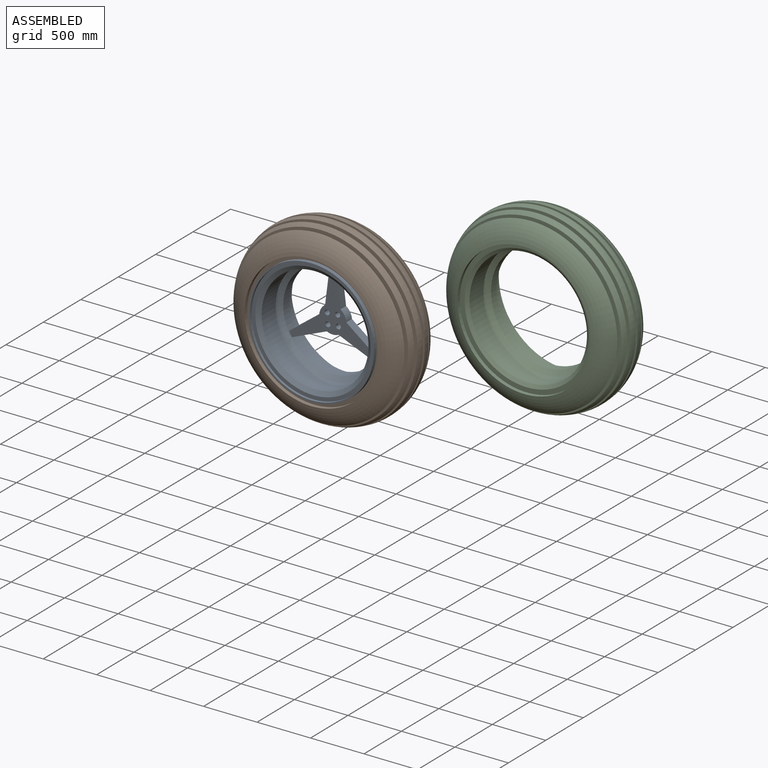
[diagram: assembled view]
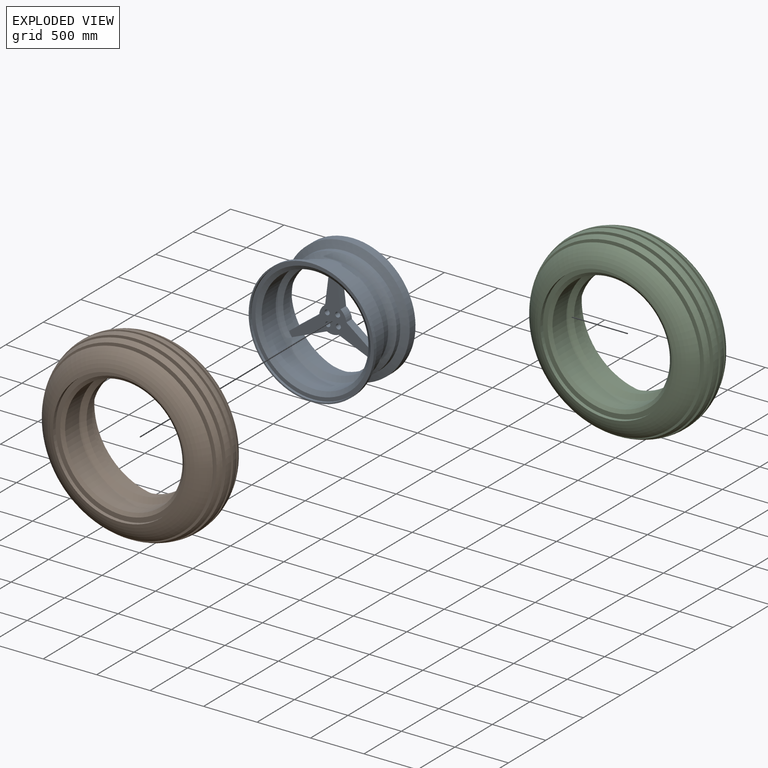
[diagram: exploded view]
GUIDED TOUR — MATED ASSEMBLY (Onshape document 36b873a3025f61fb6bbe2c13, AutoMate assembly 36b873a3025f61fb6bbe2c13_87b5c8f875b03c5a4a25c1a3_1e815d5390a2ac154a26e2ed_default)

This assembly has 3 components, labeled P0..P2 below (a component is one placed occurrence of a part; the same part can appear more than once), held together by 1 mate. A mate is a constraint between two components; its type names the relative motion it leaves free:
  REVOLUTE — leaves rotation about the listed axis free (a hinge).
Axis/direction vectors are unit vectors and 'through' points are millimeter coordinates, both in the assembly's world frame.

MATES
  1. REVOLUTE "Revolute 1": P1 <-> P0, axis (0.000, -1.000, 0.000) through (-582.43, -552.18, 38.10) mm

ASSEMBLY ORDER
  1. P0 — the base component [order heuristic]
  2. P1 — core [order heuristic]
  3. P2 [order verified]
Order-tag legend:
  [order verified] — this step's position reverses a verified removal order: the component was checked to insert without passing through the ones already placed.
  [order heuristic] — the first 2 components form the assembly's core: parts whose collision-free extraction could not be verified, listed in mate-graph order.

Of the 3 components, 1 carries the full construction recipe — the FeatureScript program that regenerates the part's solid from scratch; the rest are supplied as boundary geometry only.
Each toured component is shown spotlighted twice — in the assembled view, then in the exploded view, where a leader line traces a displaced component back to its assembled socket (saturated green if recipe-attached, orange if geometry-only; every other component desaturated gray) — followed by its recipe or geometry summary and the mates that hold it.
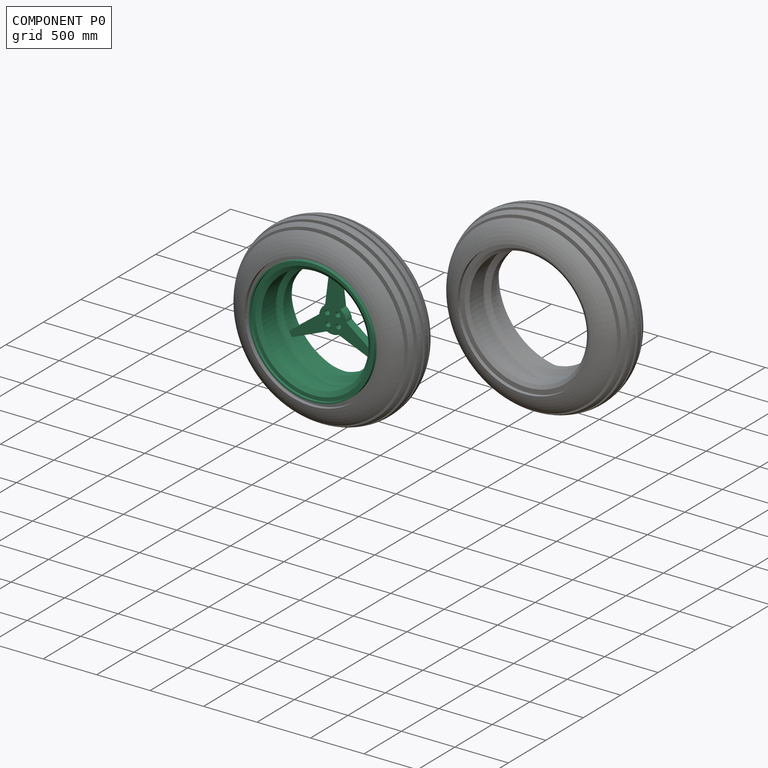
[diagram: component P0 — assembled]
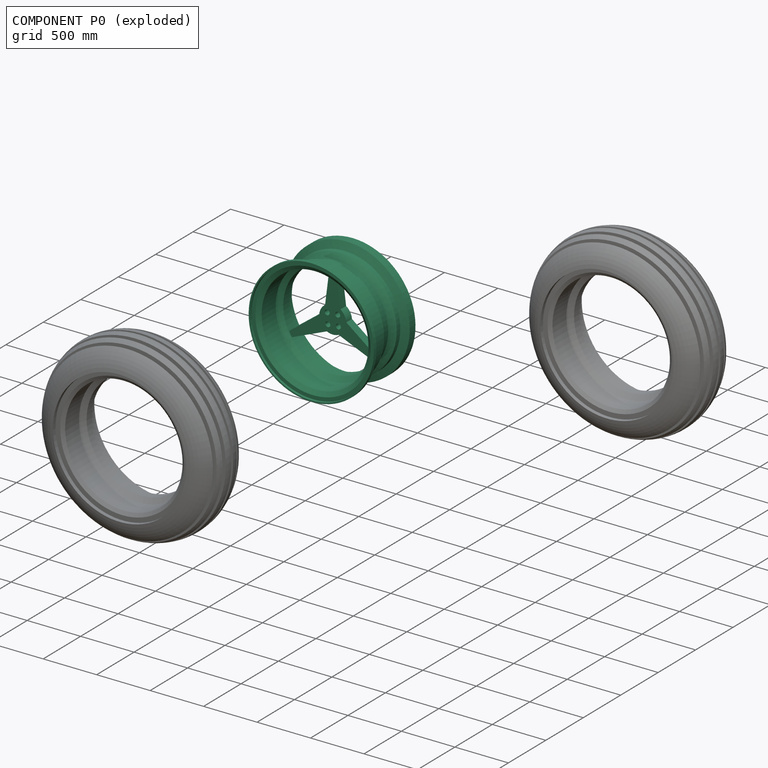
[diagram: component P0 — exploded]
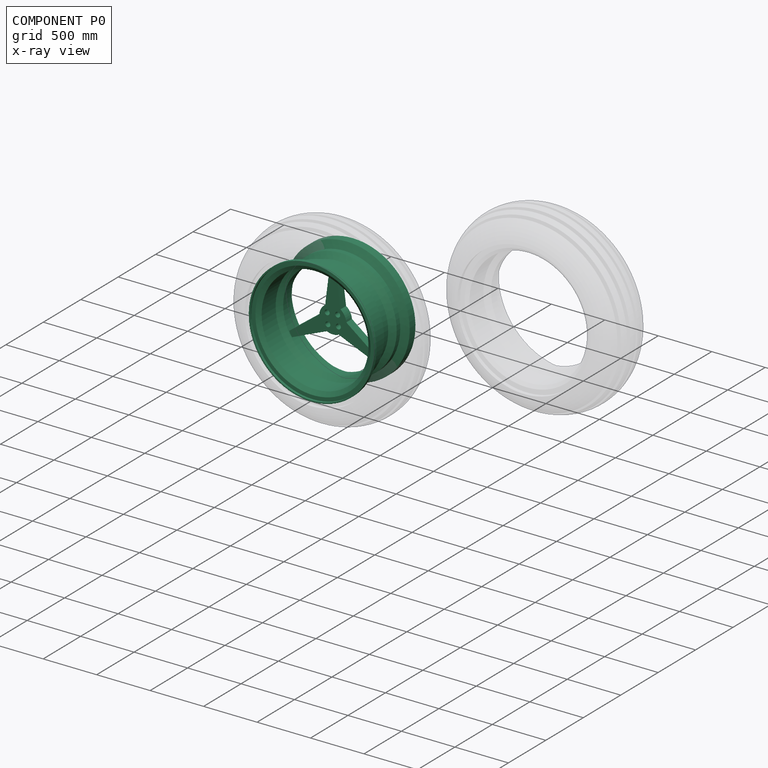
[diagram: component P0 — x-ray view]
COMPONENT P0 — recipe-attached (CADFS 00145301, mesh-verified: the recipe's output STEP matches this component's geometry to below the mesh-comparison resolution (tessellation chordal tolerance ~2.62 mm)).
Held by: REVOLUTE mate "Revolute 1" to P1.
Construction recipe (FeatureScript — the CAD program that rebuilds this solid; sketch coordinates are in the units given by the * unit suffixes, e.g. mm):

FeatureScript 1511;
import(path : "onshape/std/geometry.fs", version : "1511.0");
import(path : "onshape/std/common.fs", version : "1511.0");
const mm = millimeter;
const VERTEX = EntityType.VERTEX;
const EDGE = EntityType.EDGE;
const FACE = EntityType.FACE;
const BODY = EntityType.BODY;
function v(x, y){return vector(x, y);}
function OD(order){return orderDisambiguation(order);}
function OSD(set){return originalSetDisambiguation(set);}
function TD(topology){return topologyDisambiguation(topology);}
function TDD(query){return trueDependencyDisambiguation(query);}
function sQuery(a, b, c) {return sketchEntityQuery(a, b, c);}

annotation { "Feature Type Name" : "Feature", "Feature Type Description" : "" }
export const myFeature = defineFeature(function(context is Context, id is Id, definition is map)
    precondition{}
    {
        {
            var Q0;
            Q0=qCreatedBy(makeId("Top.planeOp"),FACE);
            var sketch = newSketch(context, id + "F0", { "sketchPlane" : qUnion([Q0])});
            skLineSegment(sketch, "E0", {"start": v(585.74, -553.54) * mm, "end": v(585.74, -518.09) * mm});
            skLineSegment(sketch, "E1", {"start": v(585.74, -518.09) * mm, "end": v(542.43, -518.09) * mm});
            skLineSegment(sketch, "E2", {"start": v(469.68, -197.1) * mm, "end": v(519.44, -154.49) * mm});
            skLineSegment(sketch, "E3", {"start": v(519.44, -154.49) * mm, "end": v(519.44, -107.02) * mm});
            skLineSegment(sketch, "E4", {"start": v(573.04, -530.79) * mm, "end": v(538.37, -530.79) * mm});
            skLineSegment(sketch, "E5", {"start": v(456.98, -188.76) * mm, "end": v(506.74, -146.9) * mm});
            skLineSegment(sketch, "E6", {"start": v(506.74, -146.9) * mm, "end": v(506.74, -90.85) * mm});
            skLineSegment(sketch, "E7", {"start": v(519.44, -107.02) * mm, "end": v(586.84, -77.36) * mm});
            skLineSegment(sketch, "E8", {"start": v(586.84, -77.36) * mm, "end": v(586.84, 0) * mm});
            skLineSegment(sketch, "E9", {"start": v(506.74, -90.85) * mm, "end": v(574.14, -61.9) * mm});
            skLineSegment(sketch, "E10", {"start": v(574.14, -61.9) * mm, "end": v(574.14, 0) * mm});
            skLineSegment(sketch, "E11", {"start": v(573.04, -553.54) * mm, "end": v(573.04, -530.79) * mm});
            skLineSegment(sketch, "E12", {"start": v(469.68, -197.1) * mm, "end": v(469.68, -269.98) * mm});
            skLineSegment(sketch, "E13", {"start": v(456.98, -188.76) * mm, "end": v(456.98, -275.1) * mm});
            skLineSegment(sketch, "E14", {"start": v(456.98, -275.1) * mm, "end": v(499.45, -315.5) * mm});
            skLineSegment(sketch, "E15", {"start": v(499.45, -315.5) * mm, "end": v(499.45, -503.08) * mm});
            skLineSegment(sketch, "E16", {"start": v(499.45, -503.08) * mm, "end": v(538.37, -530.79) * mm});
            skLineSegment(sketch, "E17", {"start": v(542.43, -518.09) * mm, "end": v(512.15, -496.53) * mm});
            skLineSegment(sketch, "E18", {"start": v(512.15, -496.53) * mm, "end": v(512.15, -311.07) * mm});
            skLineSegment(sketch, "E19", {"start": v(512.15, -311.07) * mm, "end": v(469.68, -269.98) * mm});
            skLineSegment(sketch, "E20", {"start": v(574.14, 0) * mm, "end": v(586.84, 0) * mm});
            skLineSegment(sketch, "E21", {"start": v(585.74, -553.54) * mm, "end": v(573.04, -553.54) * mm});
            skLineSegment(sketch, "E22", {"start": v(0, 0) * mm, "end": v(0, -115.18) * mm});
            skSolve(sketch);
        }
        {
            var Q0;
            Q0=makeQuery(id+"F0.imprint","IMPRINT",FACE,{"disambiguationData":[TD([[makeQuery(id+"F0.imprint","IMPRINT",EDGE,{"derivedFrom":sQuery(id+"F0.wireOp",EDGE,"E0")}),1.0]])]});
            var Q1;
            Q1=sQuery(id+"F0.wireOp",EDGE,"E22");
            revolve(context, id + "F1", {"entities" : qUnion([Q0]), "axis" : qUnion([Q1]), "revolveType" : RevolveType.FULL});
        }
        {
            var Q0;
            Q0=qCreatedBy(makeId("Front.planeOp"),FACE);
            cPlane(context, id + "F2", {"entities" : qUnion([Q0]), "cplaneType" : CPlaneType.OFFSET, "offset" : 190.5 * mm, "width" : 152.4 * mm, "height" : 152.4 * mm});
        }
        {
            var Q0;
            Q0=qCreatedBy(id+"F2.planeOp",FACE);
            var sketch = newSketch(context, id + "F3", { "sketchPlane" : qUnion([Q0])});
            skCircle(sketch, "E23", {"center": v(0, 0) * mm, "radius": 127 * mm});
            skCircle(sketch, "E24.0", {"center": v(0, 0) * mm, "radius": 456.98 * mm});
            skCircle(sketch, "E25", {"center": v(0, 0) * mm, "radius": 457.17 * mm});
            skLineSegment(sketch, "E26", {"start": v(0, 127) * mm, "end": v(0, 456.98) * mm});
            skLineSegment(sketch, "E27", {"start": v(-71.66, 104.85) * mm, "end": v(-26.93, 456.38) * mm});
            skLineSegment(sketch, "E28.MirrorCS", {"start": v(71.66, 104.85) * mm, "end": v(26.93, 456.38) * mm});
            skLineSegment(sketch, "E29.1.0", {"start": v(-54.98, -114.48) * mm, "end": v(-381.77, -251.51) * mm});
            skLineSegment(sketch, "E29.1.1", {"start": v(-126.63, 9.63) * mm, "end": v(-408.7, -204.87) * mm});
            skLineSegment(sketch, "E29.2.0", {"start": v(126.63, 9.63) * mm, "end": v(408.7, -204.87) * mm});
            skLineSegment(sketch, "E29.2.1", {"start": v(54.98, -114.48) * mm, "end": v(381.77, -251.51) * mm});
            skCircle(sketch, "E30", {"center": v(-52.67, 45.9) * mm, "radius": 23.5 * mm});
            skCircle(sketch, "E31.1.0", {"center": v(-45.9, -52.67) * mm, "radius": 23.5 * mm});
            skCircle(sketch, "E31.2.0", {"center": v(52.67, -45.9) * mm, "radius": 23.5 * mm});
            skCircle(sketch, "E31.3.0", {"center": v(45.9, 52.67) * mm, "radius": 23.5 * mm});
            skSolve(sketch);
        }
        {
            var Q0;
            {var subQ0=sQuery(id+"F3.wireOp",EDGE,"E29.1.0");var subQ1=sQuery(id+"F3.wireOp",EDGE,"E23");var subQ2=makeQuery(id+"F3.imprint","INTERSECT",VERTEX,{"derivedFrom":[subQ1,subQ0]});Q0=makeQuery(id+"F3.imprint","IMPRINT",FACE,{"disambiguationData":[TD([[makeQuery(id+"F3.imprint","IMPRINT",EDGE,{"disambiguationData":[TD([[subQ2,1.0]])],"derivedFrom":subQ1}),-1.0]])]});}
            var Q1;
            {var subQ0=sQuery(id+"F3.wireOp",EDGE,"E26");Q1=makeQuery(id+"F3.imprint","IMPRINT",FACE,{"disambiguationData":[TD([[makeQuery(id+"F3.imprint","IMPRINT",EDGE,{"derivedFrom":subQ0}),1.0]])]});}
            var Q2;
            {var subQ0=sQuery(id+"F3.wireOp",EDGE,"E26");Q2=makeQuery(id+"F3.imprint","IMPRINT",FACE,{"disambiguationData":[TD([[makeQuery(id+"F3.imprint","IMPRINT",EDGE,{"derivedFrom":subQ0}),-1.0]])]});}
            var Q3;
            {var subQ0=sQuery(id+"F3.wireOp",EDGE,"E29.2.0");var subQ1=sQuery(id+"F3.wireOp",EDGE,"E23");var subQ2=makeQuery(id+"F3.imprint","INTERSECT",VERTEX,{"derivedFrom":[subQ1,subQ0]});Q3=makeQuery(id+"F3.imprint","IMPRINT",FACE,{"disambiguationData":[TD([[makeQuery(id+"F3.imprint","IMPRINT",EDGE,{"disambiguationData":[TD([[subQ2,1.0]])],"derivedFrom":subQ1}),-1.0]])]});}
            var Q4;
            {var subQ0=sQuery(id+"F3.wireOp",EDGE,"E23");var subQ4=makeQuery(id+"F3.imprint","INTERSECT",VERTEX,{"derivedFrom":[subQ0,sQuery(id+"F3.wireOp",EDGE,"E28.MirrorCS")]});Q4=makeQuery(id+"F3.imprint","IMPRINT",FACE,{"disambiguationData":[TD([[makeQuery(id+"F3.imprint","IMPRINT",EDGE,{"disambiguationData":[TD([[subQ4,1.0]])],"derivedFrom":subQ0}),1.0]])]});}
            extrude(context, id + "F4", {"entities" : qUnion([Q0, Q1, Q2, Q3, Q4]), "operationType" : NewBodyOperationType.ADD, "depth" : 76.2 * mm});
        }
    });
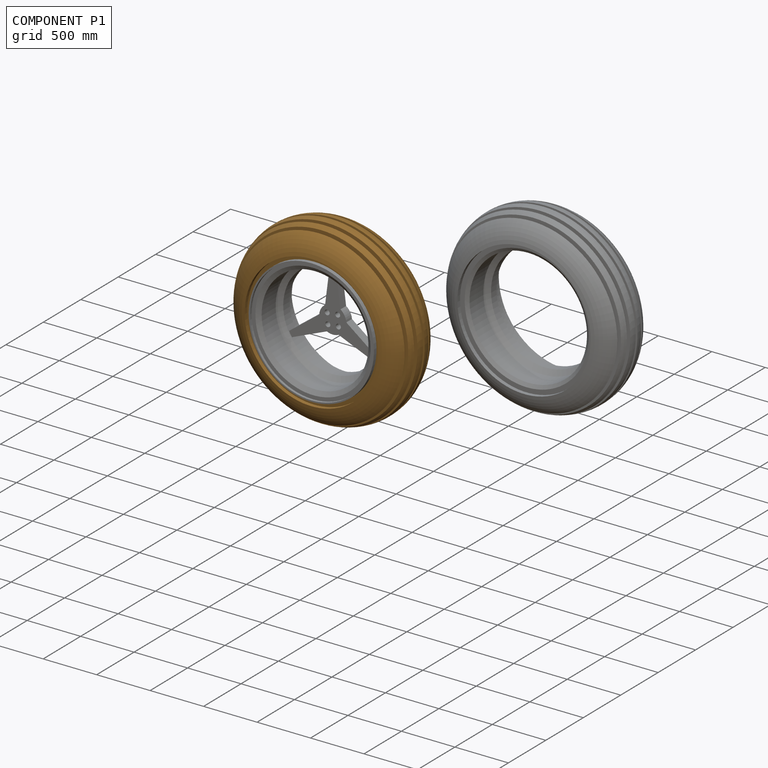
[diagram: component P1 — assembled]
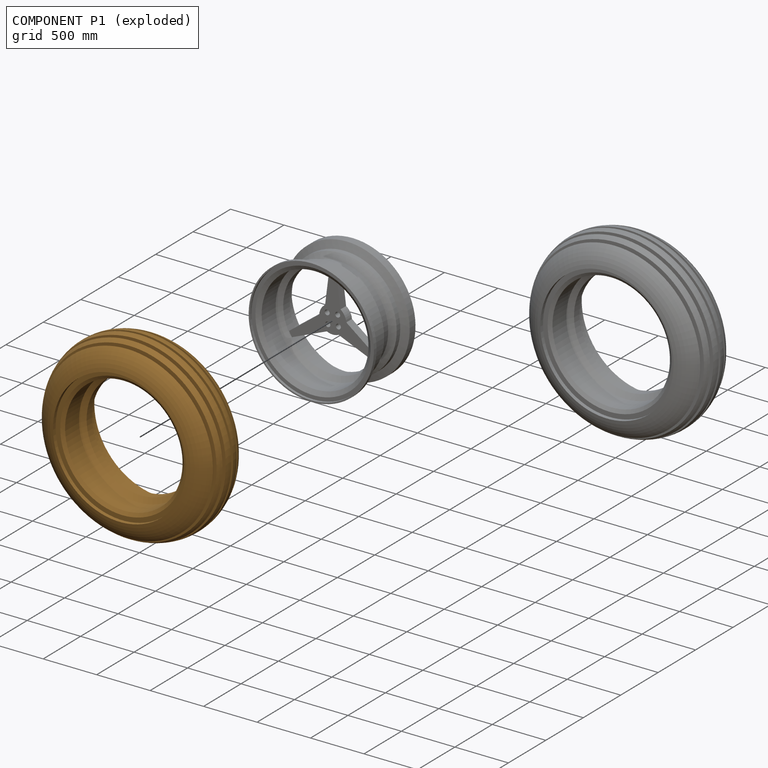
[diagram: component P1 — exploded]
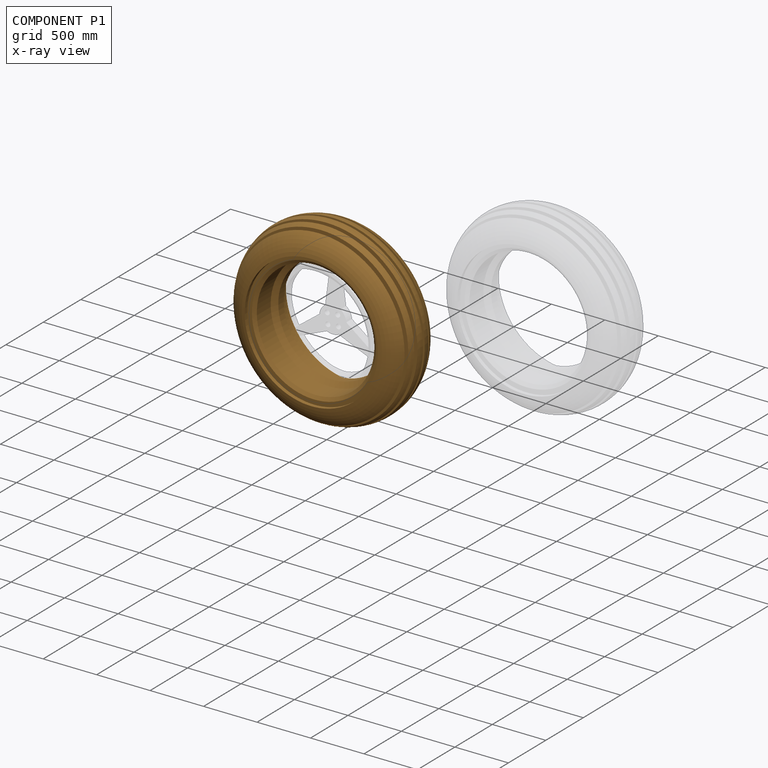
[diagram: component P1 — x-ray view]
COMPONENT P1 — geometry summary (no construction recipe available for this part):
  bounding box: 1861.3 x 1861.3 x 560.4 mm
  B-rep topology: 1 solid, 31 faces, 112 edges
  volume: 549660519 mm^3 (28% of its bounding box)
  symmetry: revolution-symmetric about the y axis through its bounding-box center; mirror-symmetric across its x mid-plane, z mid-plane
Held by: REVOLUTE mate "Revolute 1" to P0.
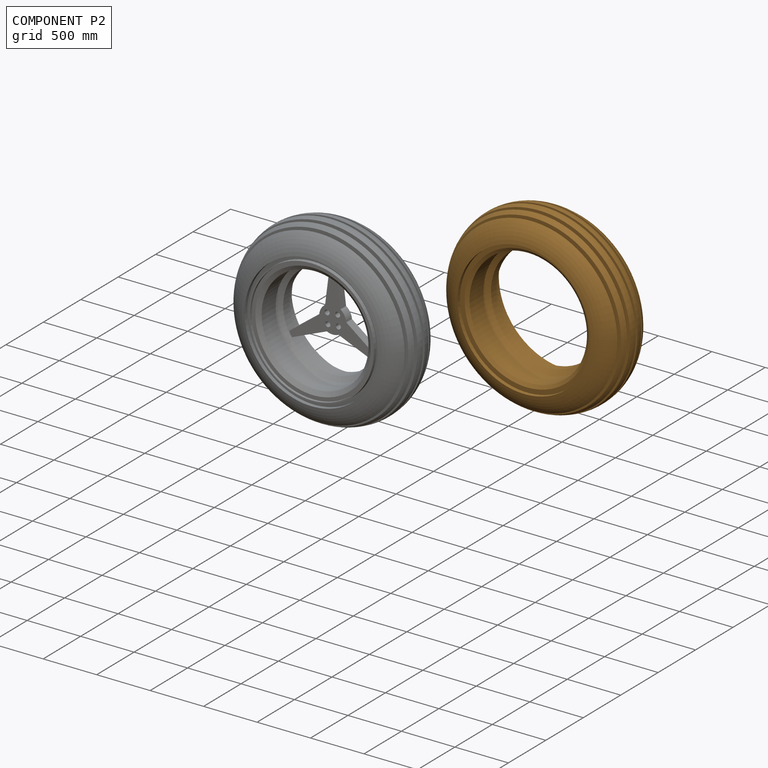
[diagram: component P2 — assembled]
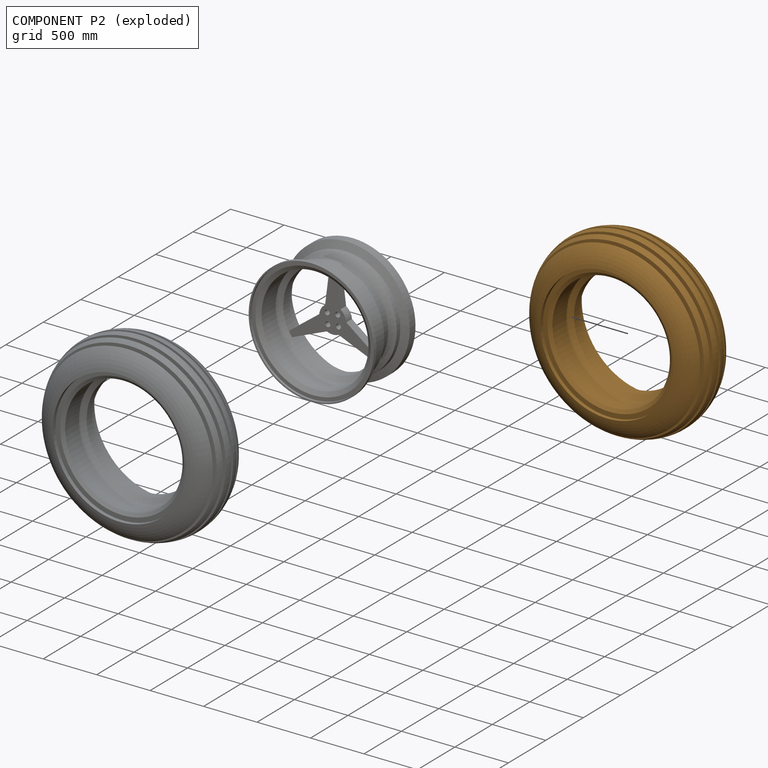
[diagram: component P2 — exploded]
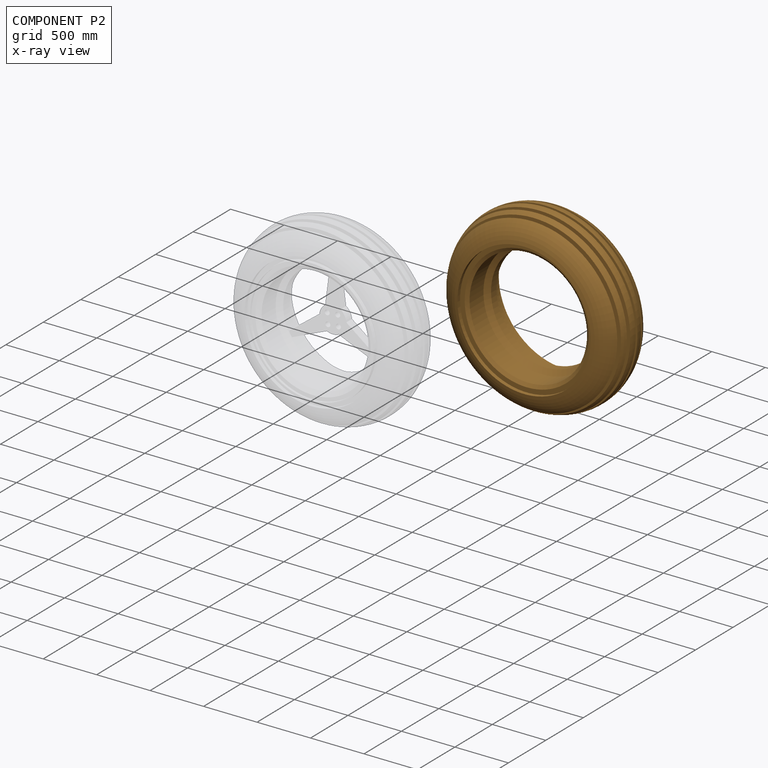
[diagram: component P2 — x-ray view]
COMPONENT P2 — geometry summary (no construction recipe available for this part):
  bounding box: 1861.3 x 1861.3 x 560.4 mm
  B-rep topology: 1 solid, 31 faces, 112 edges
  volume: 549660519 mm^3 (28% of its bounding box)
  symmetry: revolution-symmetric about the y axis through its bounding-box center; mirror-symmetric across its x mid-plane, z mid-plane
Held by: no mates (free).
PROVENANCE & LICENSES
Assembly (occurrences, transforms, mates, per-part STEP geometry): AutoMate dataset, Zenodo record 7776208, CC0.
Construction recipes: CADFS (HuggingFace VladPyatov/CADFS, CC-BY-4.0, layered over the ABC dataset), FeatureScript reconstruction programs keyed by ABC model id.
Join: ABC meta listings map ABC model id -> Onshape documentId; within a shared document, parts are matched by geometric signature (bounding-box dims + volume at 0.1% relative tolerance, exact B-rep face/solid counts).
Verification: 1 of this assembly's 3 components carries a recipe attachment, and every attachment is mesh-verified: the CADFS STEP and the AutoMate member STEP were compared as meshes in their shared local frame (symmetric sampled-point-to-mesh distance); worst across the 1 attachment: below the mesh-comparison resolution (tessellation chordal tolerance ~2.62 mm) on a 1749 mm part.
Renders: orthographic iso camera (az 35 / el 25); the floor grid conveys scale (grid pitch printed in each image; no ruler). In the exploded view each component is displaced by its stored offset vector: the offsets alone carry the explosion direction (mate normal/axis signs are not orientation cues and do not encode it), and separation distances are assigned per mate-chain, not proportionally to assembly-order depth.
